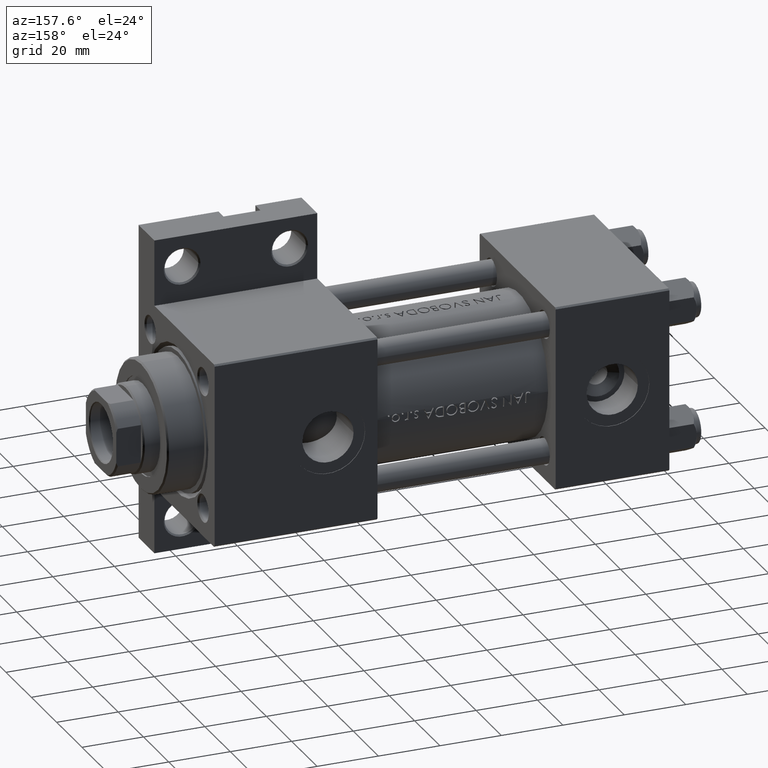
[diagram: clean part render]
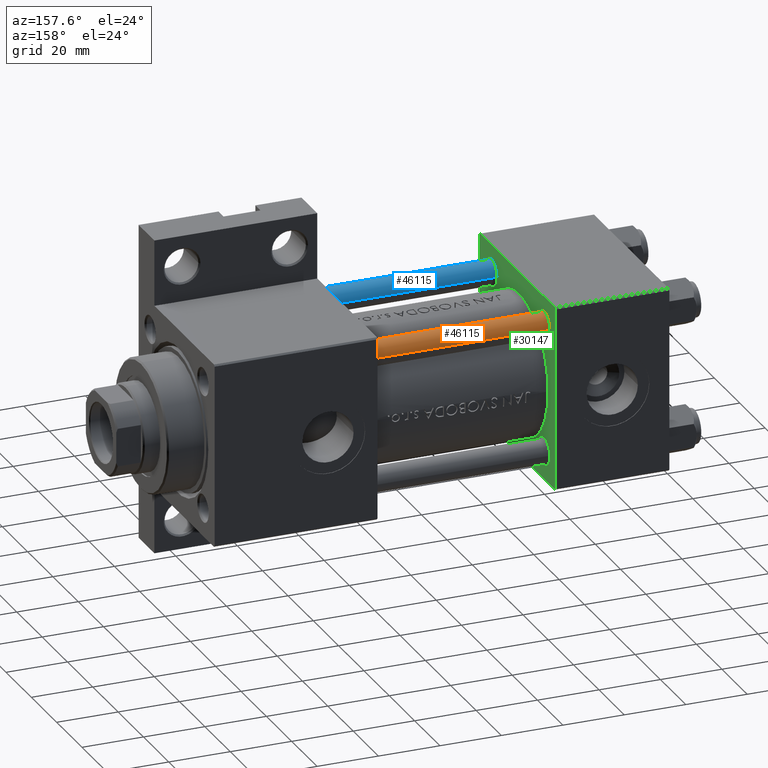
[diagram: same view with three faces highlighted in distinct colors, each labeled with its STEP entity id]
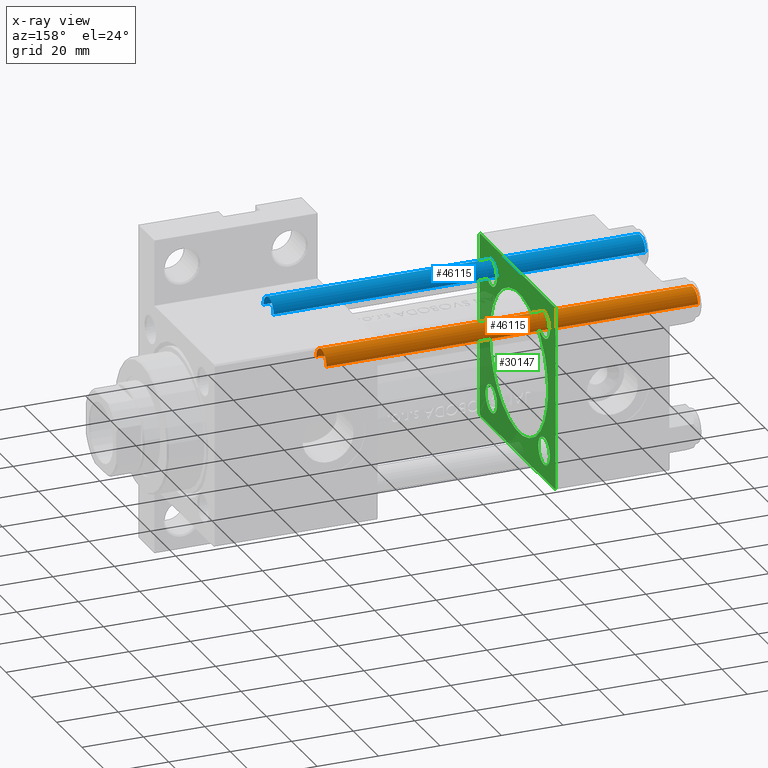
[diagram: x-ray of the same camera — body ghosted, the three highlighted faces saturated]
A machine part, auxiliary view with three faces highlighted in distinct colors.
The next image is the same camera in x-ray (body ghosted, the three faces saturated) — at least one of them is partly hidden behind the body in this view.
Their STEP definitions:

[orange] entity #46115 — the highlighted cylindrical surface (edge-blend (fillet) strip) has radius 4 mm, axis along (1, -0, 0).
#2784 = DIRECTION ( 'NONE',  ( -0.000000000000000000, -0.000000000000000000, -1.000000000000000000 ) ) ;
#3618 = EDGE_CURVE ( 'NONE', #5040, #4757, #20569, .T. ) ;
#3913 = EDGE_CURVE ( 'NONE', #4757, #34064, #44226, .T. ) ;
#4026 = CARTESIAN_POINT ( 'NONE',  ( 0.000000000000000000, 0.000000000000000000, 121.5000000000000426 ) ) ;
#4757 = VERTEX_POINT ( 'NONE', #16820 ) ;
#5040 = VERTEX_POINT ( 'NONE', #15185 ) ;
#6860 = ORIENTED_EDGE ( 'NONE', *, *, #3913, .T. ) ;
#7910 = EDGE_LOOP ( 'NONE', ( #34539, #38978, #15289, #6860 ) ) ;
#15185 = CARTESIAN_POINT ( 'NONE',  ( -4.000000000000000000, 0.000000000000000000, 121.5000000000000426 ) ) ;
#15289 = ORIENTED_EDGE ( 'NONE', *, *, #3618, .T. ) ;
#16820 = CARTESIAN_POINT ( 'NONE',  ( -4.000000000000000000, 0.000000000000000000, 0.5000000000000559552 ) ) ;
#19086 = DIRECTION ( 'NONE',  ( 0.000000000000000000, 0.000000000000000000, -1.000000000000000000 ) ) ;
#20569 = LINE ( 'NONE', #24246, #30773 ) ;
#20575 = CYLINDRICAL_SURFACE ( 'NONE', #24407, 4.000000000000000000 ) ;
#21290 = LINE ( 'NONE', #32390, #22822 ) ;
#22822 = VECTOR ( 'NONE', #2784, 1000.000000000000000 ) ;
#23027 = DIRECTION ( 'NONE',  ( 1.000000000000000000, 0.000000000000000000, 0.000000000000000000 ) ) ;
#23660 = CARTESIAN_POINT ( 'NONE',  ( 4.000000000000000000, 4.898587196589411843E-16, 121.5000000000000426 ) ) ;
#24246 = CARTESIAN_POINT ( 'NONE',  ( -4.000000000000000000, 0.000000000000000000, 122.0000000000000000 ) ) ;
#24407 = AXIS2_PLACEMENT_3D ( 'NONE', #39081, #27224, #31171 ) ;
#27224 = DIRECTION ( 'NONE',  ( -0.000000000000000000, -0.000000000000000000, -1.000000000000000000 ) ) ;
#29104 = CIRCLE ( 'NONE', #29876, 4.000000000000000000 ) ;
#29192 = EDGE_CURVE ( 'NONE', #32911, #34064, #21290, .T. ) ;
#29342 = DIRECTION ( 'NONE',  ( -0.000000000000000000, -0.000000000000000000, 1.000000000000000000 ) ) ;
#29876 = AXIS2_PLACEMENT_3D ( 'NONE', #4026, #19086, #23027 ) ;
#30036 = AXIS2_PLACEMENT_3D ( 'NONE', #48315, #29342, #40686 ) ;
#30773 = VECTOR ( 'NONE', #46694, 1000.000000000000000 ) ;
#31171 = DIRECTION ( 'NONE',  ( -1.000000000000000000, 0.000000000000000000, 0.000000000000000000 ) ) ;
#32390 = CARTESIAN_POINT ( 'NONE',  ( 4.000000000000000000, 4.898587196589411843E-16, 122.0000000000000000 ) ) ;
#32911 = VERTEX_POINT ( 'NONE', #23660 ) ;
#34064 = VERTEX_POINT ( 'NONE', #47866 ) ;
#34539 = ORIENTED_EDGE ( 'NONE', *, *, #29192, .F. ) ;
#35854 = FACE_OUTER_BOUND ( 'NONE', #7910, .T. ) ;
#38978 = ORIENTED_EDGE ( 'NONE', *, *, #45172, .T. ) ;
#39081 = CARTESIAN_POINT ( 'NONE',  ( 0.000000000000000000, 0.000000000000000000, 122.0000000000000000 ) ) ;
#40686 = DIRECTION ( 'NONE',  ( 1.000000000000000000, 0.000000000000000000, 0.000000000000000000 ) ) ;
#44226 = CIRCLE ( 'NONE', #30036, 4.000000000000000000 ) ;
#45172 = EDGE_CURVE ( 'NONE', #32911, #5040, #29104, .T. ) ;
#46115 = ADVANCED_FACE ( 'NONE', ( #35854 ), #20575, .T. ) ;
#46694 = DIRECTION ( 'NONE',  ( -0.000000000000000000, -0.000000000000000000, -1.000000000000000000 ) ) ;
#47866 = CARTESIAN_POINT ( 'NONE',  ( 4.000000000000000000, 4.898587196589411843E-16, 0.5000000000000559552 ) ) ;
#48315 = CARTESIAN_POINT ( 'NONE',  ( 0.000000000000000000, 0.000000000000000000, 0.5000000000000559552 ) ) ;

[blue] entity #46115 — the highlighted cylindrical surface (edge-blend (fillet) strip) has radius 4 mm, axis along (-1, 0, 0).
#2784 = DIRECTION ( 'NONE',  ( -0.000000000000000000, -0.000000000000000000, -1.000000000000000000 ) ) ;
#3618 = EDGE_CURVE ( 'NONE', #5040, #4757, #20569, .T. ) ;
#3913 = EDGE_CURVE ( 'NONE', #4757, #34064, #44226, .T. ) ;
#4026 = CARTESIAN_POINT ( 'NONE',  ( 0.000000000000000000, 0.000000000000000000, 121.5000000000000426 ) ) ;
#4757 = VERTEX_POINT ( 'NONE', #16820 ) ;
#5040 = VERTEX_POINT ( 'NONE', #15185 ) ;
#6860 = ORIENTED_EDGE ( 'NONE', *, *, #3913, .T. ) ;
#7910 = EDGE_LOOP ( 'NONE', ( #34539, #38978, #15289, #6860 ) ) ;
#15185 = CARTESIAN_POINT ( 'NONE',  ( -4.000000000000000000, 0.000000000000000000, 121.5000000000000426 ) ) ;
#15289 = ORIENTED_EDGE ( 'NONE', *, *, #3618, .T. ) ;
#16820 = CARTESIAN_POINT ( 'NONE',  ( -4.000000000000000000, 0.000000000000000000, 0.5000000000000559552 ) ) ;
#19086 = DIRECTION ( 'NONE',  ( 0.000000000000000000, 0.000000000000000000, -1.000000000000000000 ) ) ;
#20569 = LINE ( 'NONE', #24246, #30773 ) ;
#20575 = CYLINDRICAL_SURFACE ( 'NONE', #24407, 4.000000000000000000 ) ;
#21290 = LINE ( 'NONE', #32390, #22822 ) ;
#22822 = VECTOR ( 'NONE', #2784, 1000.000000000000000 ) ;
#23027 = DIRECTION ( 'NONE',  ( 1.000000000000000000, 0.000000000000000000, 0.000000000000000000 ) ) ;
#23660 = CARTESIAN_POINT ( 'NONE',  ( 4.000000000000000000, 4.898587196589411843E-16, 121.5000000000000426 ) ) ;
#24246 = CARTESIAN_POINT ( 'NONE',  ( -4.000000000000000000, 0.000000000000000000, 122.0000000000000000 ) ) ;
#24407 = AXIS2_PLACEMENT_3D ( 'NONE', #39081, #27224, #31171 ) ;
#27224 = DIRECTION ( 'NONE',  ( -0.000000000000000000, -0.000000000000000000, -1.000000000000000000 ) ) ;
#29104 = CIRCLE ( 'NONE', #29876, 4.000000000000000000 ) ;
#29192 = EDGE_CURVE ( 'NONE', #32911, #34064, #21290, .T. ) ;
#29342 = DIRECTION ( 'NONE',  ( -0.000000000000000000, -0.000000000000000000, 1.000000000000000000 ) ) ;
#29876 = AXIS2_PLACEMENT_3D ( 'NONE', #4026, #19086, #23027 ) ;
#30036 = AXIS2_PLACEMENT_3D ( 'NONE', #48315, #29342, #40686 ) ;
#30773 = VECTOR ( 'NONE', #46694, 1000.000000000000000 ) ;
#31171 = DIRECTION ( 'NONE',  ( -1.000000000000000000, 0.000000000000000000, 0.000000000000000000 ) ) ;
#32390 = CARTESIAN_POINT ( 'NONE',  ( 4.000000000000000000, 4.898587196589411843E-16, 122.0000000000000000 ) ) ;
#32911 = VERTEX_POINT ( 'NONE', #23660 ) ;
#34064 = VERTEX_POINT ( 'NONE', #47866 ) ;
#34539 = ORIENTED_EDGE ( 'NONE', *, *, #29192, .F. ) ;
#35854 = FACE_OUTER_BOUND ( 'NONE', #7910, .T. ) ;
#38978 = ORIENTED_EDGE ( 'NONE', *, *, #45172, .T. ) ;
#39081 = CARTESIAN_POINT ( 'NONE',  ( 0.000000000000000000, 0.000000000000000000, 122.0000000000000000 ) ) ;
#40686 = DIRECTION ( 'NONE',  ( 1.000000000000000000, 0.000000000000000000, 0.000000000000000000 ) ) ;
#44226 = CIRCLE ( 'NONE', #30036, 4.000000000000000000 ) ;
#45172 = EDGE_CURVE ( 'NONE', #32911, #5040, #29104, .T. ) ;
#46115 = ADVANCED_FACE ( 'NONE', ( #35854 ), #20575, .T. ) ;
#46694 = DIRECTION ( 'NONE',  ( -0.000000000000000000, -0.000000000000000000, -1.000000000000000000 ) ) ;
#47866 = CARTESIAN_POINT ( 'NONE',  ( 4.000000000000000000, 4.898587196589411843E-16, 0.5000000000000559552 ) ) ;
#48315 = CARTESIAN_POINT ( 'NONE',  ( 0.000000000000000000, 0.000000000000000000, 0.5000000000000559552 ) ) ;

[green] entity #30147 — the highlighted planar face has unit normal (-1, 0, -0).
#63 = DIRECTION ( 'NONE',  ( 0.000000000000000000, 0.000000000000000000, 1.000000000000000000 ) ) ;
#104 = LINE ( 'NONE', #48675, #39000 ) ;
#303 = DIRECTION ( 'NONE',  ( -1.000000000000000000, 0.000000000000000000, -0.000000000000000000 ) ) ;
#1100 = DIRECTION ( 'NONE',  ( -1.000000000000000000, 0.000000000000000000, -0.000000000000000000 ) ) ;
#1242 = ORIENTED_EDGE ( 'NONE', *, *, #41879, .T. ) ;
#1289 = DIRECTION ( 'NONE',  ( -1.000000000000000000, 0.000000000000000000, -0.000000000000000000 ) ) ;
#1503 = CIRCLE ( 'NONE', #34560, 4.499999999999990230 ) ;
#1528 = FACE_BOUND ( 'NONE', #13761, .T. ) ;
#1776 = VERTEX_POINT ( 'NONE', #30065 ) ;
#1996 = CARTESIAN_POINT ( 'NONE',  ( 37.00000000000000000, 20.84999999999999787, -20.85000000000000142 ) ) ;
#2228 = CARTESIAN_POINT ( 'NONE',  ( 37.00000000000000000, 29.99999999999999289, 30.00000000000000000 ) ) ;
#2482 = DIRECTION ( 'NONE',  ( -1.000000000000000000, 0.000000000000000000, -0.000000000000000000 ) ) ;
#2977 = ORIENTED_EDGE ( 'NONE', *, *, #18657, .T. ) ;
#3059 = VERTEX_POINT ( 'NONE', #16538 ) ;
#3219 = EDGE_LOOP ( 'NONE', ( #44610, #35516 ) ) ;
#3337 = VERTEX_POINT ( 'NONE', #48442 ) ;
#3540 = AXIS2_PLACEMENT_3D ( 'NONE', #11235, #10507, #3586 ) ;
#3586 = DIRECTION ( 'NONE',  ( 0.000000000000000000, 0.000000000000000000, 1.000000000000000000 ) ) ;
#3610 = CARTESIAN_POINT ( 'NONE',  ( 37.00000000000000000, 20.84999999999999787, 25.34999999999999076 ) ) ;
#3703 = ORIENTED_EDGE ( 'NONE', *, *, #9910, .F. ) ;
#4260 = CARTESIAN_POINT ( 'NONE',  ( 37.00000000000000000, 20.84999999999999787, -20.85000000000000142 ) ) ;
#4429 = EDGE_LOOP ( 'NONE', ( #1242, #40443 ) ) ;
#4431 = VERTEX_POINT ( 'NONE', #32418 ) ;
#4653 = DIRECTION ( 'NONE',  ( -0.000000000000000000, 0.7071067811865574537, 0.7071067811865376918 ) ) ;
#4669 = VERTEX_POINT ( 'NONE', #23978 ) ;
#5106 = CARTESIAN_POINT ( 'NONE',  ( 37.00000000000000000, 29.49999999999997868, -30.00000000000000000 ) ) ;
#5469 = VERTEX_POINT ( 'NONE', #28902 ) ;
#5646 = CARTESIAN_POINT ( 'NONE',  ( 37.00000000000000000, -30.00000000000000000, 29.49999999999999289 ) ) ;
#7256 = CARTESIAN_POINT ( 'NONE',  ( 37.00000000000000000, 29.49999999999999289, 30.00000000000000000 ) ) ;
#8150 = EDGE_CURVE ( 'NONE', #15779, #15776, #10538, .T. ) ;
#8348 = LINE ( 'NONE', #46573, #20172 ) ;
#8425 = EDGE_CURVE ( 'NONE', #27190, #18938, #25449, .T. ) ;
#9910 = EDGE_CURVE ( 'NONE', #26025, #34837, #42576, .T. ) ;
#10136 = CARTESIAN_POINT ( 'NONE',  ( 37.00000000000000000, 29.99999999999999289, -29.50000000000000000 ) ) ;
#10507 = DIRECTION ( 'NONE',  ( -1.000000000000000000, 0.000000000000000000, -0.000000000000000000 ) ) ;
#10538 = LINE ( 'NONE', #21411, #43543 ) ;
#10771 = EDGE_LOOP ( 'NONE', ( #40440, #41281 ) ) ;
#11235 = CARTESIAN_POINT ( 'NONE',  ( 37.00000000000000000, 20.84999999999999787, 20.85000000000000142 ) ) ;
#11392 = FACE_BOUND ( 'NONE', #10771, .T. ) ;
#11420 = CIRCLE ( 'NONE', #3540, 4.499999999999990230 ) ;
#11734 = CARTESIAN_POINT ( 'NONE',  ( 37.00000000000000000, 29.99999999999999289, -30.00000000000000000 ) ) ;
#11744 = CARTESIAN_POINT ( 'NONE',  ( 37.00000000000000000, -20.84999999999999076, -20.85000000000000497 ) ) ;
#11926 = EDGE_CURVE ( 'NONE', #36673, #15087, #31054, .T. ) ;
#11992 = DIRECTION ( 'NONE',  ( -1.000000000000000000, 0.000000000000000000, -0.000000000000000000 ) ) ;
#12134 = AXIS2_PLACEMENT_3D ( 'NONE', #1996, #2482, #13329 ) ;
#12213 = ORIENTED_EDGE ( 'NONE', *, *, #8150, .T. ) ;
#12636 = EDGE_CURVE ( 'NONE', #21928, #15779, #104, .T. ) ;
#12869 = DIRECTION ( 'NONE',  ( -1.000000000000000000, 0.000000000000000000, -0.000000000000000000 ) ) ;
#12914 = DIRECTION ( 'NONE',  ( 0.000000000000000000, 0.000000000000000000, 1.000000000000000000 ) ) ;
#13329 = DIRECTION ( 'NONE',  ( 0.000000000000000000, 0.000000000000000000, 1.000000000000000000 ) ) ;
#13761 = EDGE_LOOP ( 'NONE', ( #33774, #24200 ) ) ;
#13833 = VERTEX_POINT ( 'NONE', #39314 ) ;
#14143 = CARTESIAN_POINT ( 'NONE',  ( 37.00000000000000000, -20.84999999999999076, 25.34999999999999432 ) ) ;
#14645 = DIRECTION ( 'NONE',  ( -0.000000000000000000, -0.7071067811865474617, -0.7071067811865474617 ) ) ;
#14777 = EDGE_CURVE ( 'NONE', #15087, #36673, #25540, .T. ) ;
#14966 = DIRECTION ( 'NONE',  ( 0.000000000000000000, 0.000000000000000000, 1.000000000000000000 ) ) ;
#15056 = EDGE_CURVE ( 'NONE', #4669, #5469, #27096, .T. ) ;
#15087 = VERTEX_POINT ( 'NONE', #47354 ) ;
#15674 = AXIS2_PLACEMENT_3D ( 'NONE', #21165, #36463, #43853 ) ;
#15776 = VERTEX_POINT ( 'NONE', #20460 ) ;
#15779 = VERTEX_POINT ( 'NONE', #5646 ) ;
#16323 = ORIENTED_EDGE ( 'NONE', *, *, #19217, .T. ) ;
#16538 = CARTESIAN_POINT ( 'NONE',  ( 37.00000000000000000, 2.694222958124176415E-15, -22.00000000000000000 ) ) ;
#16561 = PLANE ( 'NONE',  #38506 ) ;
#16935 = EDGE_CURVE ( 'NONE', #18938, #27190, #11420, .T. ) ;
#16962 = CIRCLE ( 'NONE', #24798, 23.00000000000000000 ) ;
#17297 = LINE ( 'NONE', #43202, #44975 ) ;
#17391 = LINE ( 'NONE', #35905, #41403 ) ;
#17517 = EDGE_CURVE ( 'NONE', #4431, #3059, #16962, .T. ) ;
#17921 = CARTESIAN_POINT ( 'NONE',  ( 37.00000000000000000, 20.84999999999999787, 16.35000000000001208 ) ) ;
#18156 = DIRECTION ( 'NONE',  ( -1.000000000000000000, 0.000000000000000000, -0.000000000000000000 ) ) ;
#18450 = AXIS2_PLACEMENT_3D ( 'NONE', #38107, #1100, #12914 ) ;
#18657 = EDGE_CURVE ( 'NONE', #1776, #21928, #46861, .T. ) ;
#18750 = CARTESIAN_POINT ( 'NONE',  ( 37.00000000000000000, -29.50000000000000000, -30.00000000000000711 ) ) ;
#18938 = VERTEX_POINT ( 'NONE', #3610 ) ;
#19112 = EDGE_CURVE ( 'NONE', #13833, #42949, #17391, .T. ) ;
#19217 = EDGE_CURVE ( 'NONE', #13833, #1776, #36874, .T. ) ;
#19650 = DIRECTION ( 'NONE',  ( 0.000000000000000000, 0.000000000000000000, 1.000000000000000000 ) ) ;
#19661 = EDGE_CURVE ( 'NONE', #26025, #42949, #8348, .T. ) ;
#19940 = AXIS2_PLACEMENT_3D ( 'NONE', #30738, #11992, #19650 ) ;
#20087 = ORIENTED_EDGE ( 'NONE', *, *, #15056, .T. ) ;
#20172 = VECTOR ( 'NONE', #4653, 999.9999999999998863 ) ;
#20460 = CARTESIAN_POINT ( 'NONE',  ( 37.00000000000000000, -30.00000000000000000, -29.50000000000001776 ) ) ;
#20495 = DIRECTION ( 'NONE',  ( 0.000000000000000000, -1.000000000000000000, -1.156482317317871725E-16 ) ) ;
#21165 = CARTESIAN_POINT ( 'NONE',  ( 37.00000000000000000, -1.224646799147354686E-16, 1.000000000000000888 ) ) ;
#21411 = CARTESIAN_POINT ( 'NONE',  ( 37.00000000000000000, -30.00000000000000000, 29.99999999999999289 ) ) ;
#21928 = VERTEX_POINT ( 'NONE', #37034 ) ;
#22509 = FACE_BOUND ( 'NONE', #4429, .T. ) ;
#23102 = DIRECTION ( 'NONE',  ( -1.000000000000000000, 0.000000000000000000, -0.000000000000000000 ) ) ;
#23495 = ORIENTED_EDGE ( 'NONE', *, *, #48555, .T. ) ;
#23978 = CARTESIAN_POINT ( 'NONE',  ( 37.00000000000000000, 20.84999999999999787, -25.34999999999999076 ) ) ;
#24134 = CIRCLE ( 'NONE', #26471, 4.499999999999990230 ) ;
#24200 = ORIENTED_EDGE ( 'NONE', *, *, #31476, .F. ) ;
#24458 = DIRECTION ( 'NONE',  ( 0.000000000000000000, 0.000000000000000000, 1.000000000000000000 ) ) ;
#24798 = AXIS2_PLACEMENT_3D ( 'NONE', #48782, #45321, #30054 ) ;
#25044 = CARTESIAN_POINT ( 'NONE',  ( 37.00000000000000000, -20.84999999999999076, -20.85000000000000497 ) ) ;
#25449 = CIRCLE ( 'NONE', #19940, 4.499999999999990230 ) ;
#25540 = CIRCLE ( 'NONE', #45993, 4.499999999999990230 ) ;
#26025 = VERTEX_POINT ( 'NONE', #5106 ) ;
#26471 = AXIS2_PLACEMENT_3D ( 'NONE', #25044, #18156, #32960 ) ;
#26788 = EDGE_CURVE ( 'NONE', #5469, #4669, #1503, .T. ) ;
#27096 = CIRCLE ( 'NONE', #12134, 4.499999999999990230 ) ;
#27190 = VERTEX_POINT ( 'NONE', #17921 ) ;
#27664 = CARTESIAN_POINT ( 'NONE',  ( 37.00000000000000000, 0.000000000000000000, 0.000000000000000000 ) ) ;
#27907 = FACE_OUTER_BOUND ( 'NONE', #35749, .T. ) ;
#28090 = ORIENTED_EDGE ( 'NONE', *, *, #26788, .T. ) ;
#28902 = CARTESIAN_POINT ( 'NONE',  ( 37.00000000000000000, 20.84999999999999787, -16.35000000000001208 ) ) ;
#29611 = VECTOR ( 'NONE', #44507, 1000.000000000000114 ) ;
#30054 = DIRECTION ( 'NONE',  ( 0.000000000000000000, 0.000000000000000000, 1.000000000000000000 ) ) ;
#30065 = CARTESIAN_POINT ( 'NONE',  ( 37.00000000000000000, 29.49999999999999289, 30.00000000000000000 ) ) ;
#30147 = ADVANCED_FACE ( 'NONE', ( #22509, #33860, #45181, #11392, #1528, #27907 ), #16561, .F. ) ;
#30373 = VECTOR ( 'NONE', #20495, 1000.000000000000000 ) ;
#30738 = CARTESIAN_POINT ( 'NONE',  ( 37.00000000000000000, 20.84999999999999787, 20.85000000000000142 ) ) ;
#30981 = VECTOR ( 'NONE', #46006, 1000.000000000000000 ) ;
#31054 = CIRCLE ( 'NONE', #18450, 4.499999999999990230 ) ;
#31476 = EDGE_CURVE ( 'NONE', #3059, #4431, #44822, .T. ) ;
#32418 = CARTESIAN_POINT ( 'NONE',  ( 37.00000000000000000, -1.224646799147354686E-16, 24.00000000000000000 ) ) ;
#32960 = DIRECTION ( 'NONE',  ( 0.000000000000000000, 0.000000000000000000, 1.000000000000000000 ) ) ;
#33636 = ORIENTED_EDGE ( 'NONE', *, *, #19661, .T. ) ;
#33774 = ORIENTED_EDGE ( 'NONE', *, *, #17517, .F. ) ;
#33860 = FACE_BOUND ( 'NONE', #47803, .T. ) ;
#34346 = ORIENTED_EDGE ( 'NONE', *, *, #12636, .T. ) ;
#34560 = AXIS2_PLACEMENT_3D ( 'NONE', #4260, #12869, #24458 ) ;
#34837 = VERTEX_POINT ( 'NONE', #18750 ) ;
#35516 = ORIENTED_EDGE ( 'NONE', *, *, #11926, .T. ) ;
#35749 = EDGE_LOOP ( 'NONE', ( #3703, #33636, #47598, #16323, #2977, #34346, #12213, #23495 ) ) ;
#35814 = DIRECTION ( 'NONE',  ( 0.000000000000000000, 0.7071067811865474617, -0.7071067811865474617 ) ) ;
#35905 = CARTESIAN_POINT ( 'NONE',  ( 37.00000000000000000, 29.99999999999999289, 30.00000000000000000 ) ) ;
#36463 = DIRECTION ( 'NONE',  ( 1.000000000000000000, -0.000000000000000000, 0.000000000000000000 ) ) ;
#36673 = VERTEX_POINT ( 'NONE', #14143 ) ;
#36874 = LINE ( 'NONE', #7256, #29611 ) ;
#37034 = CARTESIAN_POINT ( 'NONE',  ( 37.00000000000000000, -29.49999999999998579, 29.99999999999999289 ) ) ;
#37314 = VERTEX_POINT ( 'NONE', #40856 ) ;
#37789 = CARTESIAN_POINT ( 'NONE',  ( 37.00000000000000000, -20.84999999999999076, 20.85000000000000497 ) ) ;
#38107 = CARTESIAN_POINT ( 'NONE',  ( 37.00000000000000000, -20.84999999999999076, 20.85000000000000497 ) ) ;
#38267 = CIRCLE ( 'NONE', #48485, 4.499999999999990230 ) ;
#38506 = AXIS2_PLACEMENT_3D ( 'NONE', #27664, #1289, #45907 ) ;
#39000 = VECTOR ( 'NONE', #14645, 1000.000000000000114 ) ;
#39314 = CARTESIAN_POINT ( 'NONE',  ( 37.00000000000000000, 29.99999999999999289, 29.50000000000000000 ) ) ;
#39800 = EDGE_CURVE ( 'NONE', #37314, #3337, #38267, .T. ) ;
#40089 = DIRECTION ( 'NONE',  ( 0.000000000000000000, 0.000000000000000000, -1.000000000000000000 ) ) ;
#40440 = ORIENTED_EDGE ( 'NONE', *, *, #8425, .T. ) ;
#40443 = ORIENTED_EDGE ( 'NONE', *, *, #39800, .T. ) ;
#40856 = CARTESIAN_POINT ( 'NONE',  ( 37.00000000000000000, -20.84999999999999076, -16.35000000000001208 ) ) ;
#41281 = ORIENTED_EDGE ( 'NONE', *, *, #16935, .T. ) ;
#41403 = VECTOR ( 'NONE', #40089, 1000.000000000000000 ) ;
#41879 = EDGE_CURVE ( 'NONE', #3337, #37314, #24134, .T. ) ;
#42576 = LINE ( 'NONE', #11734, #30981 ) ;
#42949 = VERTEX_POINT ( 'NONE', #10136 ) ;
#43202 = CARTESIAN_POINT ( 'NONE',  ( 37.00000000000000000, -29.50000000000001066, -30.00000000000000711 ) ) ;
#43543 = VECTOR ( 'NONE', #47049, 1000.000000000000000 ) ;
#43853 = DIRECTION ( 'NONE',  ( 0.000000000000000000, 0.000000000000000000, 1.000000000000000000 ) ) ;
#44507 = DIRECTION ( 'NONE',  ( 0.000000000000000000, -0.7071067811865474617, 0.7071067811865474617 ) ) ;
#44610 = ORIENTED_EDGE ( 'NONE', *, *, #14777, .T. ) ;
#44822 = CIRCLE ( 'NONE', #15674, 23.00000000000000000 ) ;
#44975 = VECTOR ( 'NONE', #35814, 1000.000000000000114 ) ;
#45181 = FACE_BOUND ( 'NONE', #3219, .T. ) ;
#45321 = DIRECTION ( 'NONE',  ( 1.000000000000000000, -0.000000000000000000, 0.000000000000000000 ) ) ;
#45907 = DIRECTION ( 'NONE',  ( -0.000000000000000000, 0.000000000000000000, 1.000000000000000000 ) ) ;
#45993 = AXIS2_PLACEMENT_3D ( 'NONE', #37789, #303, #63 ) ;
#46006 = DIRECTION ( 'NONE',  ( 0.000000000000000000, -1.000000000000000000, -1.156482317317871725E-16 ) ) ;
#46573 = CARTESIAN_POINT ( 'NONE',  ( 37.00000000000000000, 29.99999999999999289, -29.50000000000000000 ) ) ;
#46861 = LINE ( 'NONE', #2228, #30373 ) ;
#47049 = DIRECTION ( 'NONE',  ( 0.000000000000000000, 0.000000000000000000, -1.000000000000000000 ) ) ;
#47354 = CARTESIAN_POINT ( 'NONE',  ( 37.00000000000000000, -20.84999999999999076, 16.35000000000001208 ) ) ;
#47598 = ORIENTED_EDGE ( 'NONE', *, *, #19112, .F. ) ;
#47803 = EDGE_LOOP ( 'NONE', ( #20087, #28090 ) ) ;
#48442 = CARTESIAN_POINT ( 'NONE',  ( 37.00000000000000000, -20.84999999999999076, -25.34999999999999432 ) ) ;
#48485 = AXIS2_PLACEMENT_3D ( 'NONE', #11744, #23102, #14966 ) ;
#48555 = EDGE_CURVE ( 'NONE', #15776, #34837, #17297, .T. ) ;
#48675 = CARTESIAN_POINT ( 'NONE',  ( 37.00000000000000000, -30.00000000000000000, 29.49999999999999289 ) ) ;
#48782 = CARTESIAN_POINT ( 'NONE',  ( 37.00000000000000000, -1.224646799147354686E-16, 1.000000000000000888 ) ) ;